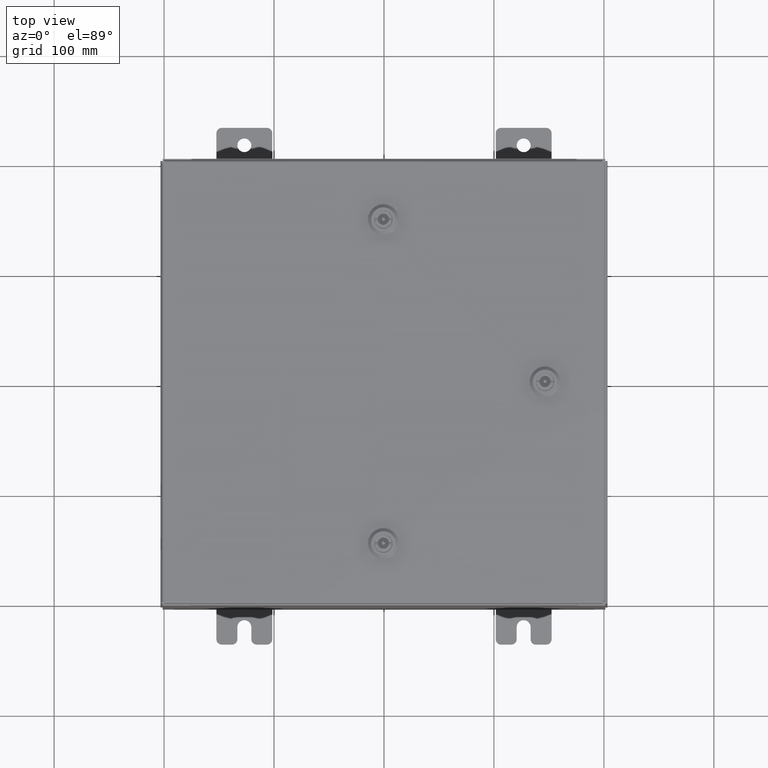
[diagram: clean part render]
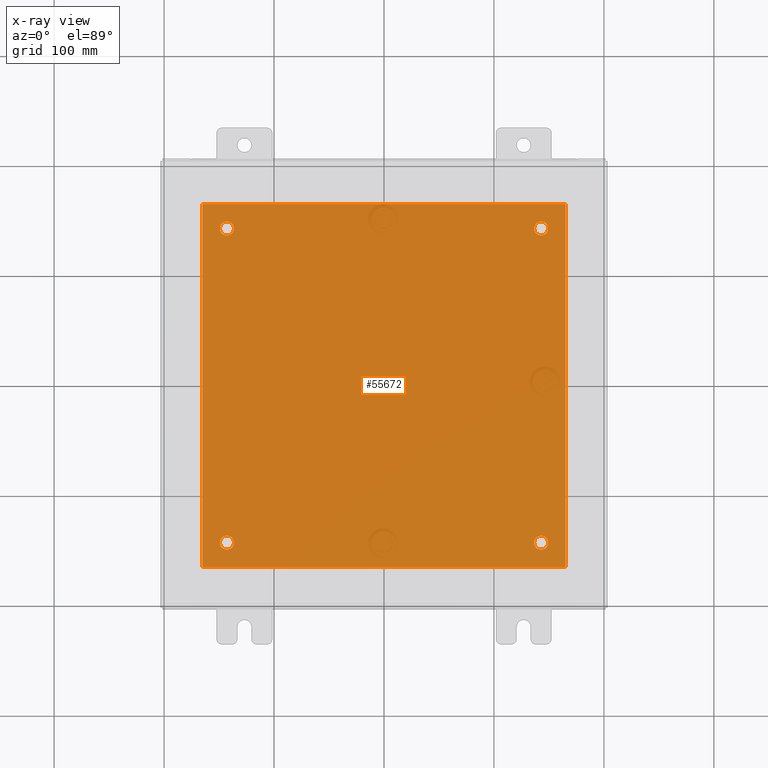
[diagram: x-ray — body ghosted, one internal face saturated and labeled with its STEP entity id]
A machine part, top view, then the same camera in x-ray: the body is ghosted and one INTERNAL B-rep face — a face not visible from any outside direction — is saturated and labeled: STEP entity #55672.
In plain terms, the highlighted planar face has unit normal (0, 0, -1).
Its self-contained STEP definition (entity closure, byte-faithful):
#290 = EDGE_CURVE ( 'NONE', #20024, #32231, #16579, .T. ) ;
#448 = AXIS2_PLACEMENT_3D ( 'NONE', #27305, #52433, #23561 ) ;
#652 = VERTEX_POINT ( 'NONE', #17256 ) ;
#2201 = DIRECTION ( 'NONE',  ( -0.0000000000000000000, -0.0000000000000000000, 1.000000000000000000 ) ) ;
#3437 = DIRECTION ( 'NONE',  ( -0.0000000000000000000, -0.0000000000000000000, 1.000000000000000000 ) ) ;
#4947 = FACE_OUTER_BOUND ( 'NONE', #26608, .T. ) ;
#5154 = CARTESIAN_POINT ( 'NONE',  ( 5.625000000000002700, 5.625000000000000900, -0.1039999999999999800 ) ) ;
#5723 = LINE ( 'NONE', #23955, #15591 ) ;
#5826 = EDGE_CURVE ( 'NONE', #12709, #43223, #28718, .T. ) ;
#5903 = AXIS2_PLACEMENT_3D ( 'NONE', #39233, #10340, #44087 ) ;
#6059 = CARTESIAN_POINT ( 'NONE',  ( 5.625000000000002700, -5.625000000000000900, -0.1039999999999999800 ) ) ;
#7097 = ORIENTED_EDGE ( 'NONE', *, *, #31703, .T. ) ;
#7206 = CARTESIAN_POINT ( 'NONE',  ( -6.500000000000000000, 6.500000000000000900, -0.1039999999999999800 ) ) ;
#8009 = FACE_BOUND ( 'NONE', #18177, .T. ) ;
#9726 = CIRCLE ( 'NONE', #58692, 0.2499999999999987000 ) ;
#9770 = VECTOR ( 'NONE', #50797, 39.37007874015748100 ) ;
#9833 = AXIS2_PLACEMENT_3D ( 'NONE', #39500, #10616, #44357 ) ;
#10032 = DIRECTION ( 'NONE',  ( -1.000000000000000000, 0.0000000000000000000, 0.0000000000000000000 ) ) ;
#10340 = DIRECTION ( 'NONE',  ( -0.0000000000000000000, -0.0000000000000000000, 1.000000000000000000 ) ) ;
#10616 = DIRECTION ( 'NONE',  ( -0.0000000000000000000, -0.0000000000000000000, 1.000000000000000000 ) ) ;
#10936 = DIRECTION ( 'NONE',  ( -1.000000000000000000, 0.0000000000000000000, 0.0000000000000000000 ) ) ;
#11621 = CARTESIAN_POINT ( 'NONE',  ( -5.625000000000002700, -5.625000000000000900, -0.1039999999999999800 ) ) ;
#11709 = CARTESIAN_POINT ( 'NONE',  ( -5.375000000000002700, -5.625000000000000900, -0.1039999999999999800 ) ) ;
#11946 = CIRCLE ( 'NONE', #52490, 0.2499999999999998100 ) ;
#12709 = VERTEX_POINT ( 'NONE', #17763 ) ;
#12858 = EDGE_LOOP ( 'NONE', ( #58754, #7097 ) ) ;
#13240 = EDGE_CURVE ( 'NONE', #43223, #36435, #5723, .T. ) ;
#14573 = DIRECTION ( 'NONE',  ( -0.0000000000000000000, -0.0000000000000000000, 1.000000000000000000 ) ) ;
#15591 = VECTOR ( 'NONE', #28773, 39.37007874015748100 ) ;
#15638 = CIRCLE ( 'NONE', #62004, 0.2499999999999987000 ) ;
#15941 = VECTOR ( 'NONE', #31958, 39.37007874015748100 ) ;
#16514 = DIRECTION ( 'NONE',  ( -1.000000000000000000, 0.0000000000000000000, 0.0000000000000000000 ) ) ;
#16579 = CIRCLE ( 'NONE', #34584, 0.2499999999999998100 ) ;
#16591 = EDGE_CURVE ( 'NONE', #52356, #652, #51554, .T. ) ;
#17256 = CARTESIAN_POINT ( 'NONE',  ( 5.875000000000000900, 5.625000000000000900, -0.1039999999999999800 ) ) ;
#17455 = CARTESIAN_POINT ( 'NONE',  ( -6.500000000000000000, -6.499999999999999100, -0.1039999999999999800 ) ) ;
#17763 = CARTESIAN_POINT ( 'NONE',  ( -6.500000000000000000, 6.500000000000000900, -0.1039999999999999800 ) ) ;
#17854 = FACE_BOUND ( 'NONE', #12858, .T. ) ;
#17894 = EDGE_CURVE ( 'NONE', #652, #52356, #26166, .T. ) ;
#18177 = EDGE_LOOP ( 'NONE', ( #21874, #36439 ) ) ;
#20019 = VERTEX_POINT ( 'NONE', #45432 ) ;
#20024 = VERTEX_POINT ( 'NONE', #11709 ) ;
#21270 = CARTESIAN_POINT ( 'NONE',  ( -6.500000000000000000, -6.499999999999999100, -0.1039999999999999800 ) ) ;
#21320 = ORIENTED_EDGE ( 'NONE', *, *, #290, .T. ) ;
#21874 = ORIENTED_EDGE ( 'NONE', *, *, #17894, .T. ) ;
#23561 = DIRECTION ( 'NONE',  ( -1.000000000000000000, 0.0000000000000000000, -0.0000000000000000000 ) ) ;
#23955 = CARTESIAN_POINT ( 'NONE',  ( -6.500000000000000000, -6.499999999999999100, -0.1039999999999999800 ) ) ;
#25418 = CARTESIAN_POINT ( 'NONE',  ( -5.875000000000001800, -5.625000000000000900, -0.1039999999999999800 ) ) ;
#26166 = CIRCLE ( 'NONE', #31425, 0.2499999999999987000 ) ;
#26172 = ORIENTED_EDGE ( 'NONE', *, *, #5826, .F. ) ;
#26173 = ORIENTED_EDGE ( 'NONE', *, *, #40384, .T. ) ;
#26249 = ORIENTED_EDGE ( 'NONE', *, *, #29859, .F. ) ;
#26608 = EDGE_LOOP ( 'NONE', ( #52307, #43205, #26172, #26249 ) ) ;
#27167 = EDGE_CURVE ( 'NONE', #36435, #50784, #59635, .T. ) ;
#27305 = CARTESIAN_POINT ( 'NONE',  ( 0.0000000000000000000, 0.0000000000000000000, -0.1039999999999999800 ) ) ;
#27960 = CARTESIAN_POINT ( 'NONE',  ( -5.875000000000001800, 5.625000000000000900, -0.1039999999999999800 ) ) ;
#28340 = EDGE_LOOP ( 'NONE', ( #26173, #61292 ) ) ;
#28718 = LINE ( 'NONE', #17455, #15941 ) ;
#28773 = DIRECTION ( 'NONE',  ( 1.000000000000000000, 0.0000000000000000000, 0.0000000000000000000 ) ) ;
#29859 = EDGE_CURVE ( 'NONE', #50784, #12709, #56549, .T. ) ;
#30644 = FACE_BOUND ( 'NONE', #39067, .T. ) ;
#31072 = CARTESIAN_POINT ( 'NONE',  ( 5.375000000000003600, 5.625000000000000900, -0.1039999999999999800 ) ) ;
#31113 = CARTESIAN_POINT ( 'NONE',  ( 5.625000000000002700, -5.625000000000000900, -0.1039999999999999800 ) ) ;
#31425 = AXIS2_PLACEMENT_3D ( 'NONE', #5154, #38908, #10032 ) ;
#31703 = EDGE_CURVE ( 'NONE', #44997, #20019, #57742, .T. ) ;
#31958 = DIRECTION ( 'NONE',  ( -0.0000000000000000000, -1.000000000000000000, -0.0000000000000000000 ) ) ;
#32231 = VERTEX_POINT ( 'NONE', #25418 ) ;
#32371 = CARTESIAN_POINT ( 'NONE',  ( -5.625000000000002700, 5.625000000000000900, -0.1039999999999999800 ) ) ;
#34584 = AXIS2_PLACEMENT_3D ( 'NONE', #43454, #14573, #48310 ) ;
#34614 = ORIENTED_EDGE ( 'NONE', *, *, #37865, .T. ) ;
#35958 = DIRECTION ( 'NONE',  ( -1.000000000000000000, 0.0000000000000000000, 0.0000000000000000000 ) ) ;
#36435 = VERTEX_POINT ( 'NONE', #55346 ) ;
#36439 = ORIENTED_EDGE ( 'NONE', *, *, #16591, .T. ) ;
#36909 = CARTESIAN_POINT ( 'NONE',  ( 6.500000000000000000, 6.500000000000000900, -0.1039999999999999800 ) ) ;
#37184 = DIRECTION ( 'NONE',  ( -1.000000000000000000, 0.0000000000000000000, 0.0000000000000000000 ) ) ;
#37865 = EDGE_CURVE ( 'NONE', #32231, #20024, #45246, .T. ) ;
#38908 = DIRECTION ( 'NONE',  ( -0.0000000000000000000, -0.0000000000000000000, 1.000000000000000000 ) ) ;
#39067 = EDGE_LOOP ( 'NONE', ( #21320, #34614 ) ) ;
#39233 = CARTESIAN_POINT ( 'NONE',  ( 5.625000000000002700, 5.625000000000000900, -0.1039999999999999800 ) ) ;
#39500 = CARTESIAN_POINT ( 'NONE',  ( -5.625000000000002700, 5.625000000000000900, -0.1039999999999999800 ) ) ;
#39812 = DIRECTION ( 'NONE',  ( -0.0000000000000000000, -0.0000000000000000000, 1.000000000000000000 ) ) ;
#40384 = EDGE_CURVE ( 'NONE', #44086, #41449, #9726, .T. ) ;
#40852 = CARTESIAN_POINT ( 'NONE',  ( 6.500000000000000000, -6.499999999999999100, -0.1039999999999999800 ) ) ;
#40947 = DIRECTION ( 'NONE',  ( -1.000000000000000000, -0.0000000000000000000, -0.0000000000000000000 ) ) ;
#41449 = VERTEX_POINT ( 'NONE', #55472 ) ;
#41746 = CARTESIAN_POINT ( 'NONE',  ( 5.875000000000000900, -5.625000000000000900, -0.1039999999999999800 ) ) ;
#43205 = ORIENTED_EDGE ( 'NONE', *, *, #13240, .F. ) ;
#43223 = VERTEX_POINT ( 'NONE', #21270 ) ;
#43247 = EDGE_CURVE ( 'NONE', #41449, #44086, #15638, .T. ) ;
#43454 = CARTESIAN_POINT ( 'NONE',  ( -5.625000000000002700, -5.625000000000000900, -0.1039999999999999800 ) ) ;
#43476 = FACE_BOUND ( 'NONE', #28340, .T. ) ;
#43679 = VECTOR ( 'NONE', #40947, 39.37007874015748100 ) ;
#44086 = VERTEX_POINT ( 'NONE', #41746 ) ;
#44087 = DIRECTION ( 'NONE',  ( -1.000000000000000000, 0.0000000000000000000, 0.0000000000000000000 ) ) ;
#44357 = DIRECTION ( 'NONE',  ( -1.000000000000000000, 0.0000000000000000000, 0.0000000000000000000 ) ) ;
#44997 = VERTEX_POINT ( 'NONE', #27960 ) ;
#45246 = CIRCLE ( 'NONE', #60618, 0.2499999999999998100 ) ;
#45361 = DIRECTION ( 'NONE',  ( -0.0000000000000000000, -0.0000000000000000000, 1.000000000000000000 ) ) ;
#45432 = CARTESIAN_POINT ( 'NONE',  ( -5.375000000000002700, 5.625000000000000900, -0.1039999999999999800 ) ) ;
#47584 = PLANE ( 'NONE',  #448 ) ;
#48310 = DIRECTION ( 'NONE',  ( -1.000000000000000000, 0.0000000000000000000, 0.0000000000000000000 ) ) ;
#50784 = VERTEX_POINT ( 'NONE', #36909 ) ;
#50797 = DIRECTION ( 'NONE',  ( 0.0000000000000000000, 1.000000000000000000, 0.0000000000000000000 ) ) ;
#51479 = EDGE_CURVE ( 'NONE', #20019, #44997, #11946, .T. ) ;
#51554 = CIRCLE ( 'NONE', #5903, 0.2499999999999987000 ) ;
#52307 = ORIENTED_EDGE ( 'NONE', *, *, #27167, .F. ) ;
#52356 = VERTEX_POINT ( 'NONE', #31072 ) ;
#52433 = DIRECTION ( 'NONE',  ( 0.0000000000000000000, 0.0000000000000000000, -1.000000000000000000 ) ) ;
#52490 = AXIS2_PLACEMENT_3D ( 'NONE', #32371, #3437, #37184 ) ;
#55346 = CARTESIAN_POINT ( 'NONE',  ( 6.500000000000000000, -6.499999999999999100, -0.1039999999999999800 ) ) ;
#55472 = CARTESIAN_POINT ( 'NONE',  ( 5.375000000000003600, -5.625000000000000900, -0.1039999999999999800 ) ) ;
#55672 = ADVANCED_FACE ( 'NONE', ( #30644, #43476, #8009, #17854, #4947 ), #47584, .T. ) ;
#56549 = LINE ( 'NONE', #7206, #43679 ) ;
#57742 = CIRCLE ( 'NONE', #9833, 0.2499999999999998100 ) ;
#58692 = AXIS2_PLACEMENT_3D ( 'NONE', #6059, #39812, #10936 ) ;
#58754 = ORIENTED_EDGE ( 'NONE', *, *, #51479, .T. ) ;
#59635 = LINE ( 'NONE', #40852, #9770 ) ;
#60618 = AXIS2_PLACEMENT_3D ( 'NONE', #11621, #45361, #16514 ) ;
#61292 = ORIENTED_EDGE ( 'NONE', *, *, #43247, .T. ) ;
#62004 = AXIS2_PLACEMENT_3D ( 'NONE', #31113, #2201, #35958 ) ;